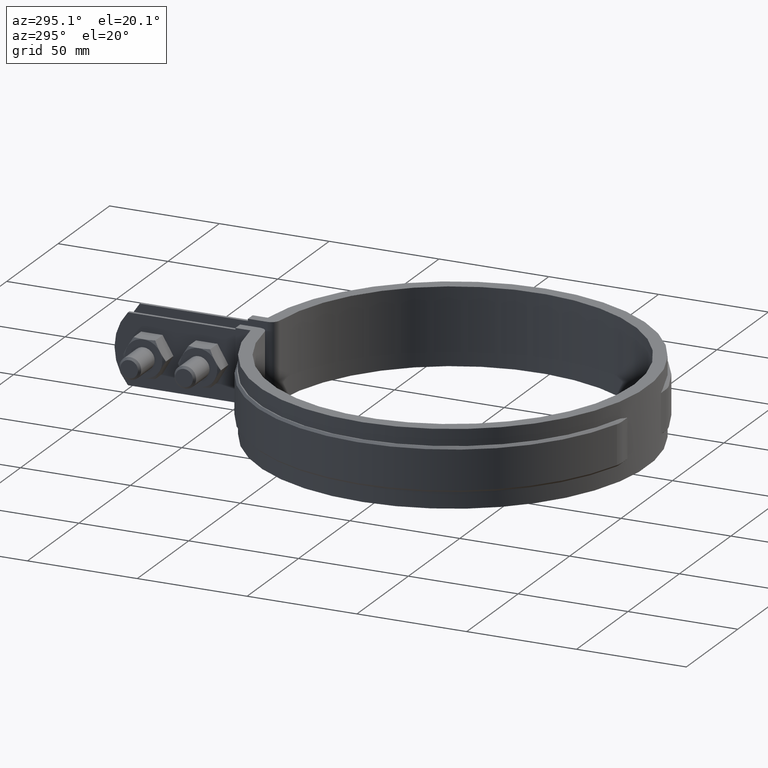
[diagram: clean part render]
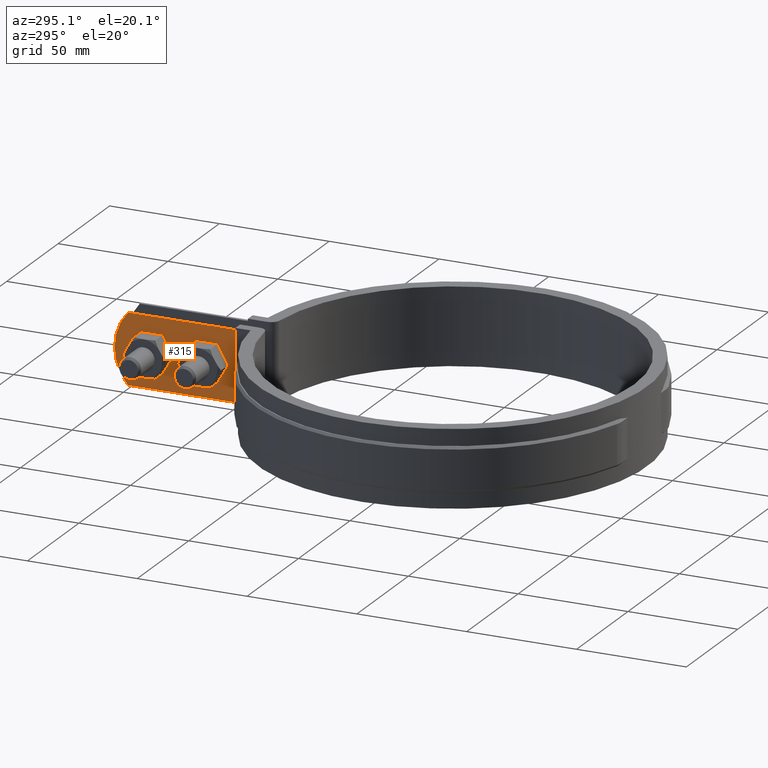
[diagram: same view with one face highlighted and labeled with its STEP entity id]
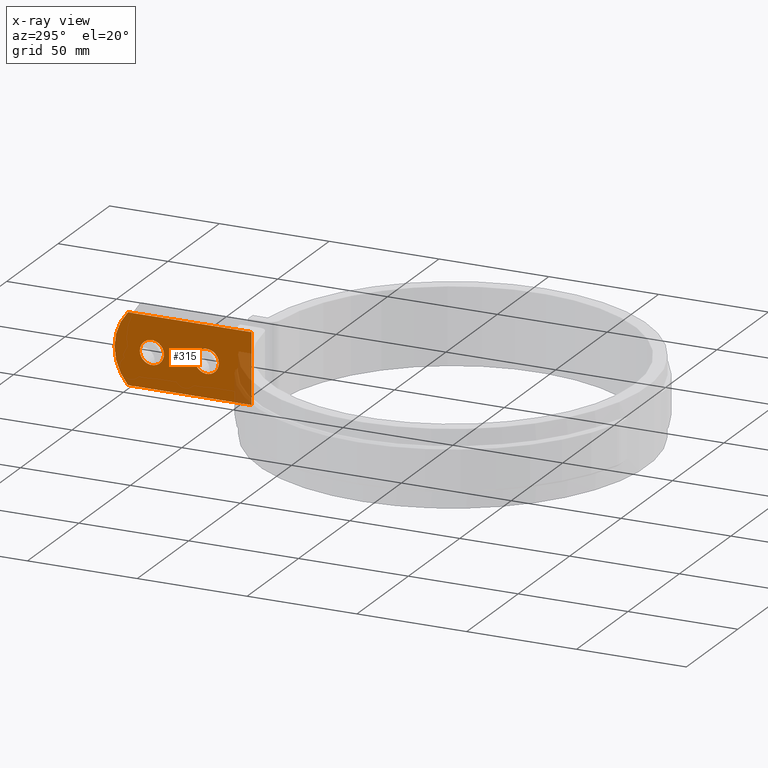
[diagram: x-ray of the same camera — body ghosted, the highlighted face saturated]
A machine part, auxiliary view. The second image highlights one B-rep face of the part: STEP entity #315.
The next image is the same camera in x-ray: the body ghosted, the highlighted face saturated — about 9% of this face is hidden behind the body in this view.
In plain terms, the highlighted planar face has unit normal (1, -0, 0).
Its self-contained STEP definition (entity closure, byte-faithful):
#315 = ADVANCED_FACE( '', ( #470, #471, #472 ), #473, .F. );
#470 = FACE_BOUND( '', #810, .T. );
#471 = FACE_OUTER_BOUND( '', #811, .T. );
#472 = FACE_BOUND( '', #812, .T. );
#473 = PLANE( '', #813 );
#810 = EDGE_LOOP( '', ( #1896 ) );
#811 = EDGE_LOOP( '', ( #1897, #1898, #1899, #1900 ) );
#812 = EDGE_LOOP( '', ( #1901 ) );
#813 = AXIS2_PLACEMENT_3D( '', #1902, #1903, #1904 );
#1896 = ORIENTED_EDGE( '', *, *, #4608, .F. );
#1897 = ORIENTED_EDGE( '', *, *, #4609, .T. );
#1898 = ORIENTED_EDGE( '', *, *, #4610, .T. );
#1899 = ORIENTED_EDGE( '', *, *, #4611, .F. );
#1900 = ORIENTED_EDGE( '', *, *, #4612, .F. );
#1901 = ORIENTED_EDGE( '', *, *, #4613, .F. );
#1902 = CARTESIAN_POINT( '', ( -6.49999999999999, 151.002986998692, 0.000000000000000 ) );
#1903 = DIRECTION( '', ( 1.00000000000000, -6.22721247786546E-017, 0.000000000000000 ) );
#1904 = DIRECTION( '', ( -6.22721247786546E-017, -1.00000000000000, 0.000000000000000 ) );
#4608 = EDGE_CURVE( '', #4994, #4994, #4995, .F. );
#4609 = EDGE_CURVE( '', #4996, #4997, #4998, .T. );
#4610 = EDGE_CURVE( '', #4997, #4999, #5000, .T. );
#4611 = EDGE_CURVE( '', #5001, #4999, #5002, .T. );
#4612 = EDGE_CURVE( '', #4996, #5001, #5003, .T. );
#4613 = EDGE_CURVE( '', #5004, #5004, #5005, .F. );
#4994 = VERTEX_POINT( '', #5638 );
#4995 = CIRCLE( '', #5639, 5.50000000000000 );
#4996 = VERTEX_POINT( '', #5640 );
#4997 = VERTEX_POINT( '', #5641 );
#4998 = LINE( '', #5642, #5643 );
#4999 = VERTEX_POINT( '', #5644 );
#5000 = LINE( '', #5645, #5646 );
#5001 = VERTEX_POINT( '', #5647 );
#5002 = LINE( '', #5648, #5649 );
#5003 = CIRCLE( '', #5650, 24.0000000000000 );
#5004 = VERTEX_POINT( '', #5651 );
#5005 = CIRCLE( '', #5652, 5.50000000000000 );
#5638 = CARTESIAN_POINT( '', ( -6.49999999999998, 139.502986998692, -16.0000000000000 ) );
#5639 = AXIS2_PLACEMENT_3D( '', #8618, #8619, #8620 );
#5640 = CARTESIAN_POINT( '', ( -6.49999999999998, 144.891530818690, -32.0000000000000 ) );
#5641 = CARTESIAN_POINT( '', ( -6.49999999999999, 88.6442891561549, -32.0000000000000 ) );
#5642 = CARTESIAN_POINT( '', ( -6.49999999999999, 151.002986998692, -32.0000000000000 ) );
#5643 = VECTOR( '', #8621, 1000.00000000000 );
#5644 = CARTESIAN_POINT( '', ( -6.49999999999999, 88.6442891561549, 0.000000000000000 ) );
#5645 = CARTESIAN_POINT( '', ( -6.49999999999999, 88.6442891561549, 0.000000000000000 ) );
#5646 = VECTOR( '', #8622, 1000.00000000000 );
#5647 = CARTESIAN_POINT( '', ( -6.49999999999998, 144.891530818690, -4.33680868994202E-016 ) );
#5648 = CARTESIAN_POINT( '', ( -6.49999999999999, 151.002986998692, 0.000000000000000 ) );
#5649 = VECTOR( '', #8623, 1000.00000000000 );
#5650 = AXIS2_PLACEMENT_3D( '', #8624, #8625, #8626 );
#5651 = CARTESIAN_POINT( '', ( -6.49999999999998, 114.502986998692, -16.0000000000000 ) );
#5652 = AXIS2_PLACEMENT_3D( '', #8627, #8628, #8629 );
#8618 = CARTESIAN_POINT( '', ( -6.49999999999998, 134.002986998692, -16.0000000000000 ) );
#8619 = DIRECTION( '', ( 1.00000000000000, -6.22721247786546E-017, 0.000000000000000 ) );
#8620 = DIRECTION( '', ( 6.22721247786546E-017, 1.00000000000000, 0.000000000000000 ) );
#8621 = DIRECTION( '', ( -6.22721247786546E-017, -1.00000000000000, 0.000000000000000 ) );
#8622 = DIRECTION( '', ( 0.000000000000000, 0.000000000000000, 1.00000000000000 ) );
#8623 = DIRECTION( '', ( -6.22721247786546E-017, -1.00000000000000, 0.000000000000000 ) );
#8624 = CARTESIAN_POINT( '', ( -6.49999999999998, 127.002986998692, -16.0000000000000 ) );
#8625 = DIRECTION( '', ( 1.00000000000000, -6.22721247786546E-017, 0.000000000000000 ) );
#8626 = DIRECTION( '', ( 6.22721247786546E-017, 1.00000000000000, 0.000000000000000 ) );
#8627 = CARTESIAN_POINT( '', ( -6.49999999999998, 109.002986998692, -16.0000000000000 ) );
#8628 = DIRECTION( '', ( 1.00000000000000, -6.22721247786546E-017, 0.000000000000000 ) );
#8629 = DIRECTION( '', ( 6.22721247786546E-017, 1.00000000000000, 0.000000000000000 ) );